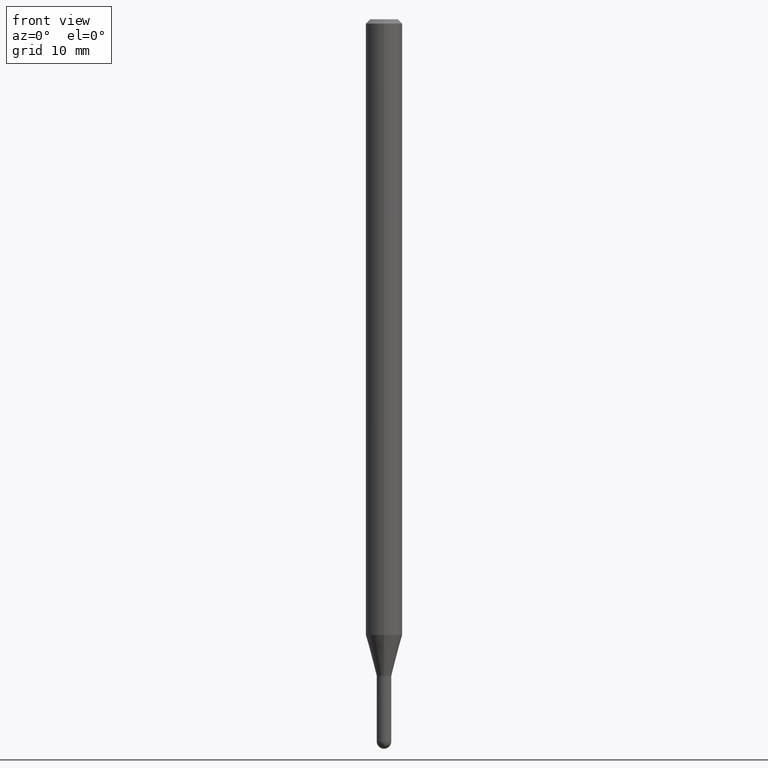
[diagram: clean part render]
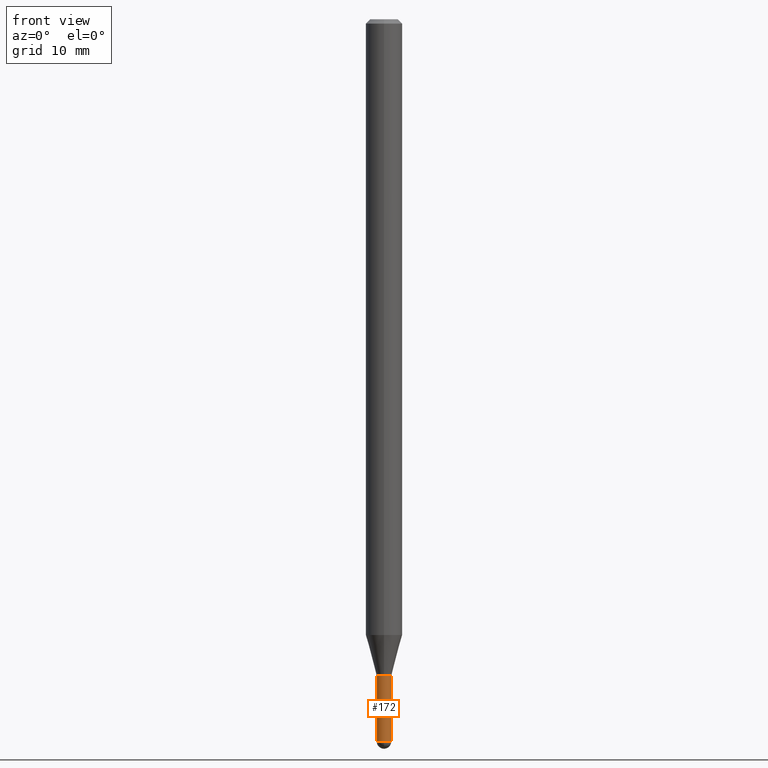
[diagram: same view with one face highlighted and labeled with its STEP entity id]
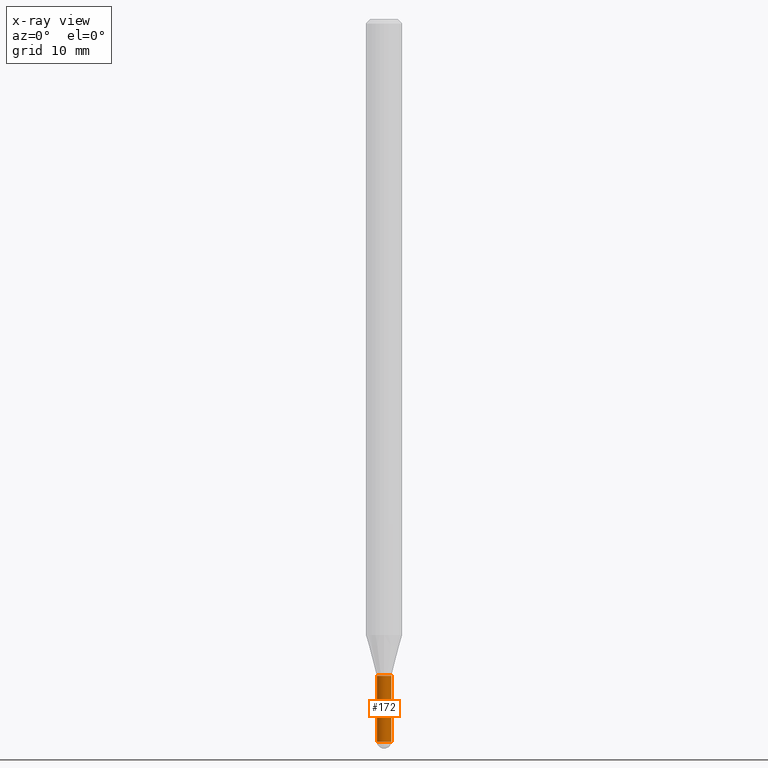
[diagram: x-ray of the same camera — body ghosted, the highlighted face saturated]
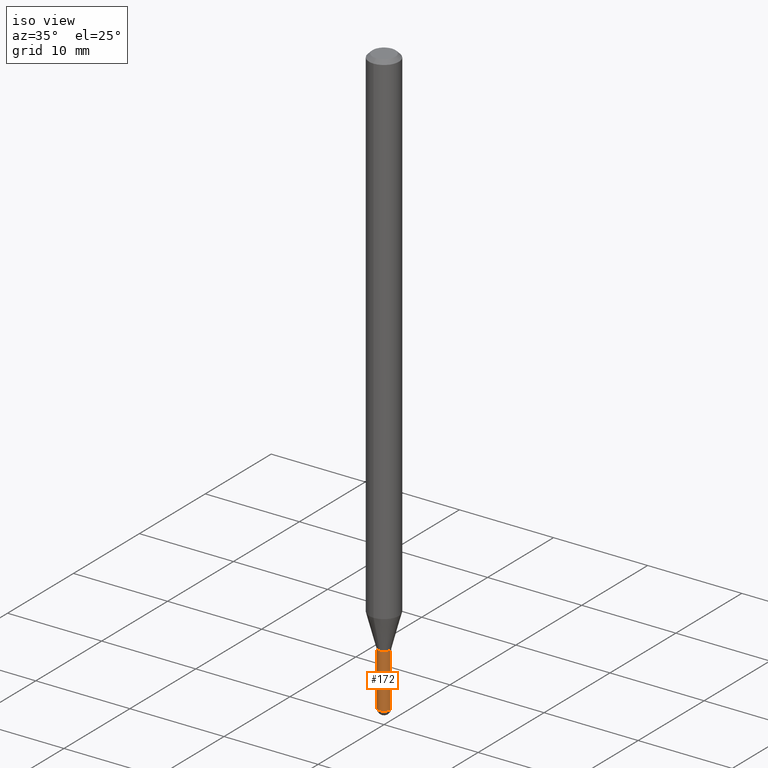
[diagram: same view with one face highlighted and labeled with its STEP entity id]
A machine part, front view. The second image highlights one B-rep face of the part: STEP entity #172.
The next image is the same camera in x-ray: the body ghosted, the highlighted face saturated — about 0% of this face is hidden behind the body in this view.
A second angle (iso view) of the same face is appended — the face is thin or edge-on in the first view.
In plain terms, the highlighted cylindrical surface (edge-blend (fillet) strip) has radius 0.635 mm, axis along (-0, 0, 1).
Its self-contained STEP definition (entity closure, byte-faithful):
#16 = FACE_OUTER_BOUND ( 'NONE', #41, .T. ) ;
#41 = EDGE_LOOP ( 'NONE', ( #391, #484, #131, #69, #277 ) ) ;
#47 = AXIS2_PLACEMENT_3D ( 'NONE', #461, #314, #469 ) ;
#63 = CARTESIAN_POINT ( 'NONE',  ( -0.02500000000000000486, -8.070988979076907324E-15, -2.475000000000000089 ) ) ;
#69 = ORIENTED_EDGE ( 'NONE', *, *, #129, .T. ) ;
#86 = VERTEX_POINT ( 'NONE', #128 ) ;
#94 = CARTESIAN_POINT ( 'NONE',  ( 0.02500000000000000486, -1.745740669421567171E-16, 1.219044193948984299E-30 ) ) ;
#110 = CIRCLE ( 'NONE', #368, 0.02500000000000000139 ) ;
#113 = DIRECTION ( 'NONE',  ( 1.000000000000000000, -6.982962677686253300E-15, 0.000000000000000000 ) ) ;
#114 = EDGE_CURVE ( 'NONE', #196, #155, #341, .T. ) ;
#128 = CARTESIAN_POINT ( 'NONE',  ( 0.02500000000000000139, -8.030407079339233538E-15, -2.250000000000000000 ) ) ;
#129 = EDGE_CURVE ( 'NONE', #200, #86, #370, .T. ) ;
#130 = CARTESIAN_POINT ( 'NONE',  ( -0.02500000000000000139, -8.070988979076907324E-15, -2.250000000000000000 ) ) ;
#131 = ORIENTED_EDGE ( 'NONE', *, *, #185, .T. ) ;
#140 = CARTESIAN_POINT ( 'NONE',  ( -0.02500000000000000486, 1.776356839400250810E-16, -1.229733772563726656E-30 ) ) ;
#144 = CIRCLE ( 'NONE', #256, 0.02500000000000000486 ) ;
#155 = VERTEX_POINT ( 'NONE', #130 ) ;
#172 = ADVANCED_FACE ( 'NONE', ( #16 ), #275, .T. ) ;
#177 = DIRECTION ( 'NONE',  ( -2.445468806185136877E-29, 3.491481338843145188E-15, 1.000000000000000000 ) ) ;
#185 = EDGE_CURVE ( 'NONE', #395, #200, #211, .T. ) ;
#187 = CARTESIAN_POINT ( 'NONE',  ( 5.502304813916557343E-29, -7.855833012397078448E-15, -2.250000000000000000 ) ) ;
#189 = CARTESIAN_POINT ( 'NONE',  ( 6.052535295308213750E-29, -8.641416313636786609E-15, -2.475000000000000089 ) ) ;
#196 = VERTEX_POINT ( 'NONE', #63 ) ;
#198 = CARTESIAN_POINT ( 'NONE',  ( 6.052535295308213750E-29, -8.641416313636786609E-15, -2.475000000000000089 ) ) ;
#200 = VERTEX_POINT ( 'NONE', #506 ) ;
#211 = CIRCLE ( 'NONE', #405, 0.02500000000000000486 ) ;
#216 = EDGE_CURVE ( 'NONE', #155, #86, #110, .T. ) ;
#219 = CARTESIAN_POINT ( 'NONE',  ( -1.776356839399643140E-16, -0.02500000000000861256, -2.475000000000000089 ) ) ;
#226 = DIRECTION ( 'NONE',  ( 1.000000000000000000, -6.982962677686254878E-15, 0.000000000000000000 ) ) ;
#233 = EDGE_CURVE ( 'NONE', #196, #395, #144, .T. ) ;
#256 = AXIS2_PLACEMENT_3D ( 'NONE', #198, #288, #290 ) ;
#267 = DIRECTION ( 'NONE',  ( -2.445468806185136597E-29, 3.491481338843145583E-15, 1.000000000000000000 ) ) ;
#275 = CYLINDRICAL_SURFACE ( 'NONE', #47, 0.02500000000000000486 ) ;
#277 = ORIENTED_EDGE ( 'NONE', *, *, #216, .F. ) ;
#288 = DIRECTION ( 'NONE',  ( -2.445468806185136597E-29, 3.491481338843145583E-15, 1.000000000000000000 ) ) ;
#290 = DIRECTION ( 'NONE',  ( 1.000000000000000000, -6.982962677686253300E-15, 0.000000000000000000 ) ) ;
#291 = DIRECTION ( 'NONE',  ( -2.445468806185136877E-29, 3.491481338843145188E-15, 1.000000000000000000 ) ) ;
#314 = DIRECTION ( 'NONE',  ( -2.445468806185136597E-29, 3.491481338843145583E-15, 1.000000000000000000 ) ) ;
#341 = LINE ( 'NONE', #140, #447 ) ;
#356 = DIRECTION ( 'NONE',  ( -2.445468806185136597E-29, 3.491481338843145583E-15, 1.000000000000000000 ) ) ;
#368 = AXIS2_PLACEMENT_3D ( 'NONE', #187, #267, #226 ) ;
#370 = LINE ( 'NONE', #94, #458 ) ;
#391 = ORIENTED_EDGE ( 'NONE', *, *, #114, .F. ) ;
#395 = VERTEX_POINT ( 'NONE', #219 ) ;
#405 = AXIS2_PLACEMENT_3D ( 'NONE', #189, #356, #113 ) ;
#447 = VECTOR ( 'NONE', #291, 39.37007874015748143 ) ;
#458 = VECTOR ( 'NONE', #177, 39.37007874015748143 ) ;
#461 = CARTESIAN_POINT ( 'NONE',  ( 0.000000000000000000, 0.000000000000000000, 0.000000000000000000 ) ) ;
#469 = DIRECTION ( 'NONE',  ( 1.000000000000000000, -6.982962677686267499E-15, 4.876176775795936353E-29 ) ) ;
#484 = ORIENTED_EDGE ( 'NONE', *, *, #233, .T. ) ;
#506 = CARTESIAN_POINT ( 'NONE',  ( 0.02500000000000000486, -8.423198729959088407E-15, -2.475000000000000089 ) ) ;